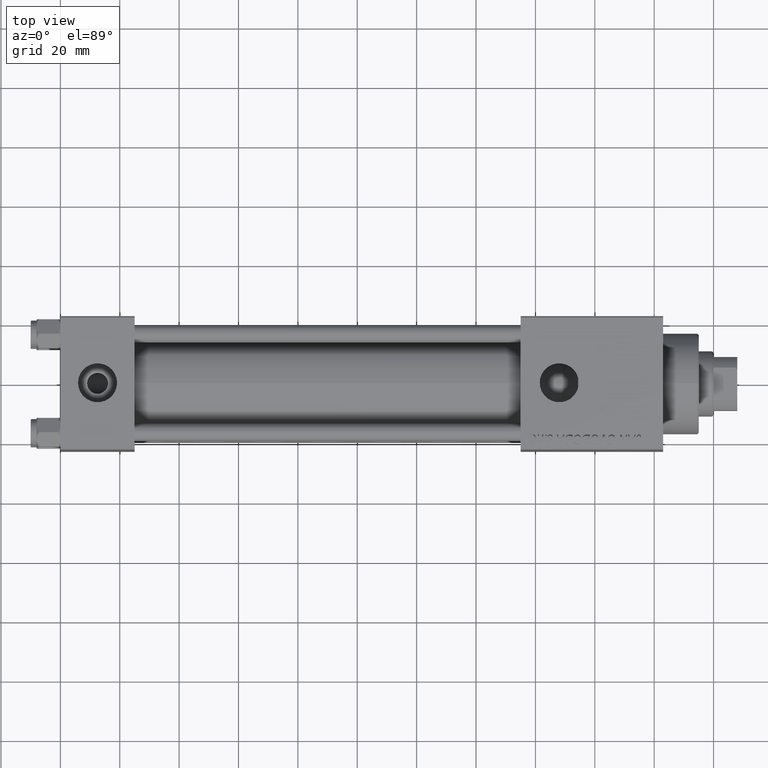
[diagram: clean part render]
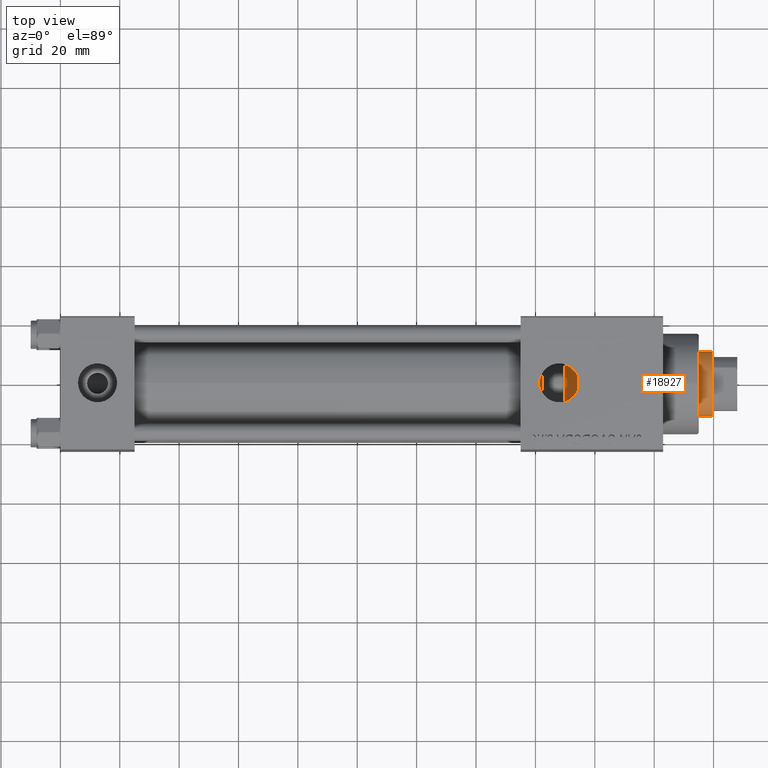
[diagram: same view with one face highlighted and labeled with its STEP entity id]
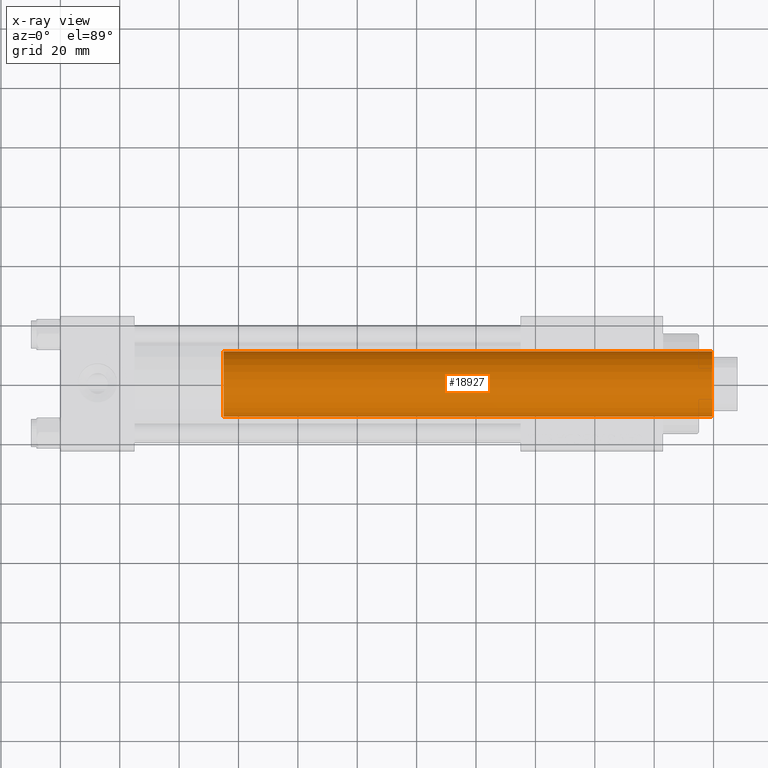
[diagram: x-ray of the same camera — body ghosted, the highlighted face saturated]
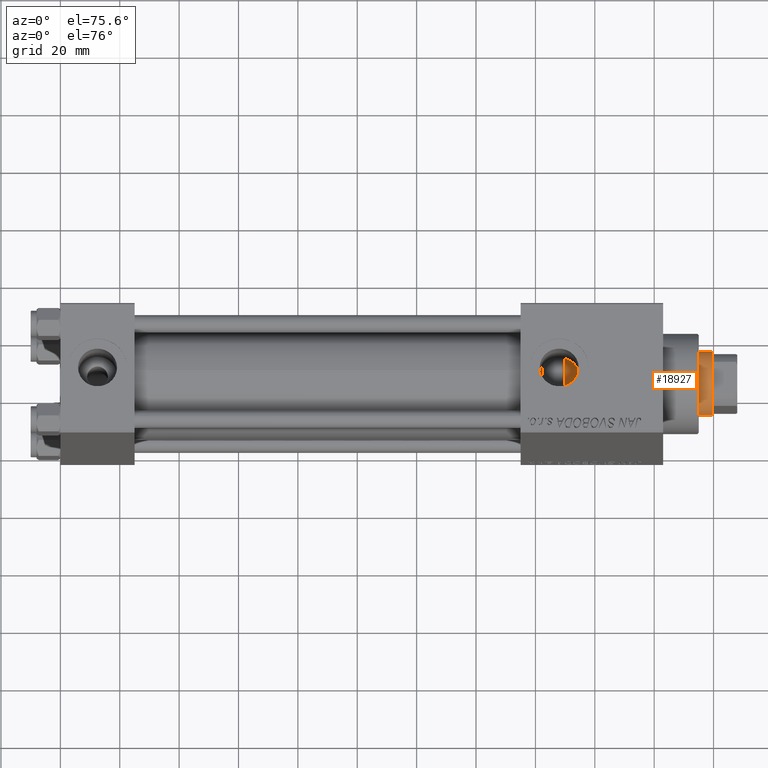
[diagram: same view with one face highlighted and labeled with its STEP entity id]
A machine part, top view. The second image highlights one B-rep face of the part: STEP entity #18927.
The next image is the same camera in x-ray: the body ghosted, the highlighted face saturated — about 0% of this face is hidden behind the body in this view.
A second angle (auxiliary view) of the same face is appended — the face is thin or edge-on in the first view.
In plain terms, the highlighted cylindrical surface (edge-blend (fillet) strip) has radius 11 mm, axis along (-1, 0, 0).
Its self-contained STEP definition (entity closure, byte-faithful):
#2524 = DIRECTION ( 'NONE',  ( -0.000000000000000000, -0.000000000000000000, -1.000000000000000000 ) ) ;
#2537 = EDGE_CURVE ( 'NONE', #43172, #21460, #19953, .T. ) ;
#3696 = CARTESIAN_POINT ( 'NONE',  ( 11.00000000000000000, 1.347111479062088405E-15, 195.0000000000000000 ) ) ;
#3758 = ORIENTED_EDGE ( 'NONE', *, *, #20594, .F. ) ;
#4695 = VECTOR ( 'NONE', #5426, 1000.000000000000000 ) ;
#5426 = DIRECTION ( 'NONE',  ( -0.000000000000000000, -0.000000000000000000, -1.000000000000000000 ) ) ;
#6012 = ORIENTED_EDGE ( 'NONE', *, *, #2537, .T. ) ;
#6291 = EDGE_LOOP ( 'NONE', ( #3758, #50194, #20697, #6012 ) ) ;
#10020 = CARTESIAN_POINT ( 'NONE',  ( 0.000000000000000000, 0.000000000000000000, 194.5000000000000284 ) ) ;
#12021 = LINE ( 'NONE', #20314, #28943 ) ;
#13704 = DIRECTION ( 'NONE',  ( -1.000000000000000000, 0.000000000000000000, 0.000000000000000000 ) ) ;
#18927 = ADVANCED_FACE ( 'NONE', ( #41968 ), #49265, .T. ) ;
#19953 = CIRCLE ( 'NONE', #48985, 11.00000000000000000 ) ;
#20314 = CARTESIAN_POINT ( 'NONE',  ( -11.00000000000000000, 0.000000000000000000, 195.0000000000000000 ) ) ;
#20594 = EDGE_CURVE ( 'NONE', #23715, #21460, #40982, .T. ) ;
#20697 = ORIENTED_EDGE ( 'NONE', *, *, #31588, .T. ) ;
#21460 = VERTEX_POINT ( 'NONE', #38153 ) ;
#23715 = VERTEX_POINT ( 'NONE', #42997 ) ;
#24229 = CARTESIAN_POINT ( 'NONE',  ( 0.000000000000000000, 0.000000000000000000, 30.00000000000000000 ) ) ;
#26292 = CARTESIAN_POINT ( 'NONE',  ( -11.00000000000000000, 0.000000000000000000, 194.5000000000000284 ) ) ;
#26810 = EDGE_CURVE ( 'NONE', #23715, #43804, #47034, .T. ) ;
#28393 = DIRECTION ( 'NONE',  ( 1.000000000000000000, 0.000000000000000000, 0.000000000000000000 ) ) ;
#28943 = VECTOR ( 'NONE', #47319, 1000.000000000000000 ) ;
#31588 = EDGE_CURVE ( 'NONE', #43804, #43172, #12021, .T. ) ;
#33141 = DIRECTION ( 'NONE',  ( 0.000000000000000000, 0.000000000000000000, -1.000000000000000000 ) ) ;
#33697 = CARTESIAN_POINT ( 'NONE',  ( -11.00000000000000000, 0.000000000000000000, 30.00000000000000000 ) ) ;
#34606 = AXIS2_PLACEMENT_3D ( 'NONE', #10020, #33141, #45342 ) ;
#37307 = CARTESIAN_POINT ( 'NONE',  ( 0.000000000000000000, 0.000000000000000000, 195.0000000000000000 ) ) ;
#38153 = CARTESIAN_POINT ( 'NONE',  ( 11.00000000000000000, 1.347111479062088405E-15, 30.00000000000000000 ) ) ;
#40068 = DIRECTION ( 'NONE',  ( 0.000000000000000000, 0.000000000000000000, 1.000000000000000000 ) ) ;
#40982 = LINE ( 'NONE', #3696, #4695 ) ;
#41968 = FACE_OUTER_BOUND ( 'NONE', #6291, .T. ) ;
#42997 = CARTESIAN_POINT ( 'NONE',  ( 11.00000000000000000, 1.347111479062088405E-15, 194.5000000000000284 ) ) ;
#43172 = VERTEX_POINT ( 'NONE', #33697 ) ;
#43592 = AXIS2_PLACEMENT_3D ( 'NONE', #37307, #2524, #13704 ) ;
#43804 = VERTEX_POINT ( 'NONE', #26292 ) ;
#45342 = DIRECTION ( 'NONE',  ( 1.000000000000000000, 0.000000000000000000, 0.000000000000000000 ) ) ;
#47034 = CIRCLE ( 'NONE', #34606, 11.00000000000000000 ) ;
#47319 = DIRECTION ( 'NONE',  ( -0.000000000000000000, -0.000000000000000000, -1.000000000000000000 ) ) ;
#48985 = AXIS2_PLACEMENT_3D ( 'NONE', #24229, #40068, #28393 ) ;
#49265 = CYLINDRICAL_SURFACE ( 'NONE', #43592, 11.00000000000000000 ) ;
#50194 = ORIENTED_EDGE ( 'NONE', *, *, #26810, .T. ) ;